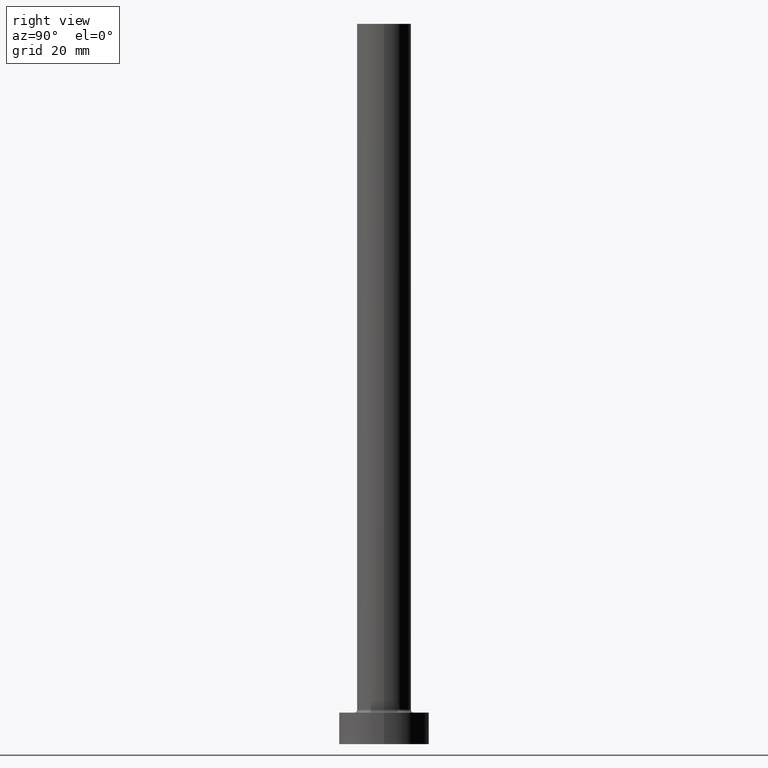
[diagram: clean part render]
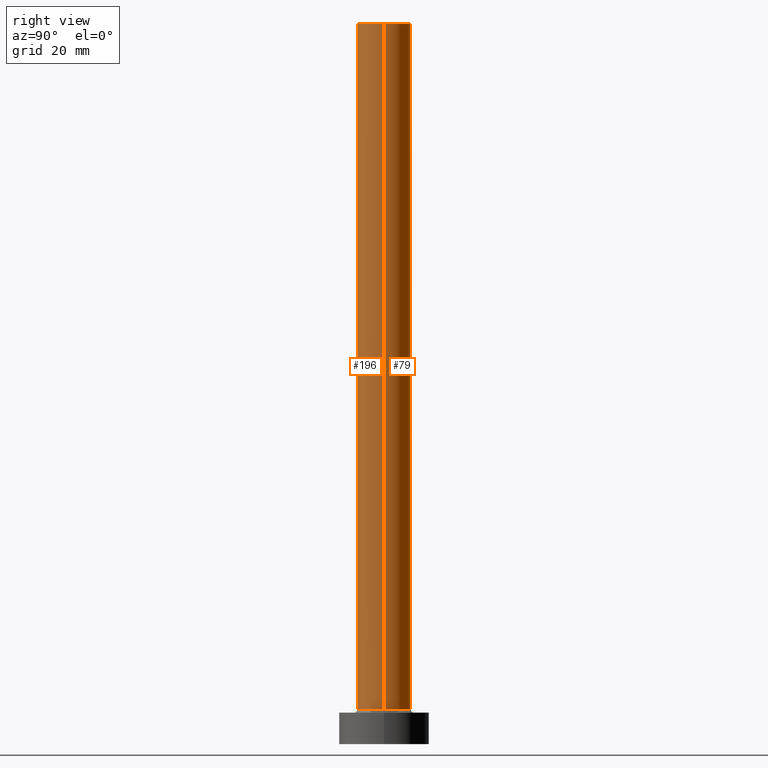
[diagram: same view with one multi-face feature highlighted, each face labeled with its STEP entity id]
A machine part, right view. The highlighted faces form ONE feature: a constant-radius fillet chain: 2 tangent blend faces with common blend radius 6 mm. The faces share edges in the B-rep.
Their STEP definitions:
[1] entity #79 (Cylinder):
#4 = LINE ( 'NONE', #185, #147 ) ;
#6 = AXIS2_PLACEMENT_3D ( 'NONE', #52, #191, #339 ) ;
#14 = EDGE_CURVE ( 'NONE', #306, #256, #152, .T. ) ;
#21 = CIRCLE ( 'NONE', #6, 6.000000000000000888 ) ;
#40 = ORIENTED_EDGE ( 'NONE', *, *, #305, .F. ) ;
#52 = CARTESIAN_POINT ( 'NONE',  ( 0.000000000000000000, 0.000000000000000000, 7.700000000000012612 ) ) ;
#54 = CARTESIAN_POINT ( 'NONE',  ( 0.000000000000000000, 0.000000000000000000, 160.0000000000000000 ) ) ;
#62 = VERTEX_POINT ( 'NONE', #445 ) ;
#79 = ADVANCED_FACE ( 'NONE', ( #274 ), #270, .T. ) ;
#94 = DIRECTION ( 'NONE',  ( -1.000000000000000000, 0.000000000000000000, 0.000000000000000000 ) ) ;
#104 = ORIENTED_EDGE ( 'NONE', *, *, #14, .T. ) ;
#139 = ORIENTED_EDGE ( 'NONE', *, *, #446, .T. ) ;
#146 = DIRECTION ( 'NONE',  ( -0.000000000000000000, -0.000000000000000000, -1.000000000000000000 ) ) ;
#147 = VECTOR ( 'NONE', #146, 1000.000000000000000 ) ;
#148 = CARTESIAN_POINT ( 'NONE',  ( -6.000000000000000888, 0.000000000000000000, 7.700000000000012612 ) ) ;
#152 = LINE ( 'NONE', #374, #268 ) ;
#153 = CARTESIAN_POINT ( 'NONE',  ( 6.000000000000000888, 7.347880794884120722E-16, 7.700000000000012612 ) ) ;
#163 = EDGE_LOOP ( 'NONE', ( #213, #104, #139, #40 ) ) ;
#185 = CARTESIAN_POINT ( 'NONE',  ( -6.000000000000000888, 0.000000000000000000, 160.0000000000000000 ) ) ;
#191 = DIRECTION ( 'NONE',  ( 0.000000000000000000, 0.000000000000000000, 1.000000000000000000 ) ) ;
#211 = EDGE_CURVE ( 'NONE', #306, #62, #381, .T. ) ;
#213 = ORIENTED_EDGE ( 'NONE', *, *, #211, .F. ) ;
#250 = AXIS2_PLACEMENT_3D ( 'NONE', #359, #292, #321 ) ;
#256 = VERTEX_POINT ( 'NONE', #153 ) ;
#268 = VECTOR ( 'NONE', #300, 1000.000000000000000 ) ;
#270 = CYLINDRICAL_SURFACE ( 'NONE', #352, 6.000000000000000888 ) ;
#274 = FACE_OUTER_BOUND ( 'NONE', #163, .T. ) ;
#286 = VERTEX_POINT ( 'NONE', #148 ) ;
#292 = DIRECTION ( 'NONE',  ( 0.000000000000000000, 0.000000000000000000, 1.000000000000000000 ) ) ;
#300 = DIRECTION ( 'NONE',  ( -0.000000000000000000, -0.000000000000000000, -1.000000000000000000 ) ) ;
#305 = EDGE_CURVE ( 'NONE', #62, #286, #4, .T. ) ;
#306 = VERTEX_POINT ( 'NONE', #432 ) ;
#321 = DIRECTION ( 'NONE',  ( 1.000000000000000000, 0.000000000000000000, 0.000000000000000000 ) ) ;
#339 = DIRECTION ( 'NONE',  ( 1.000000000000000000, 0.000000000000000000, 0.000000000000000000 ) ) ;
#352 = AXIS2_PLACEMENT_3D ( 'NONE', #54, #411, #94 ) ;
#359 = CARTESIAN_POINT ( 'NONE',  ( 0.000000000000000000, 0.000000000000000000, 160.0000000000000000 ) ) ;
#374 = CARTESIAN_POINT ( 'NONE',  ( 6.000000000000000888, 7.347880794884120722E-16, 160.0000000000000000 ) ) ;
#381 = CIRCLE ( 'NONE', #250, 6.000000000000000888 ) ;
#411 = DIRECTION ( 'NONE',  ( -0.000000000000000000, -0.000000000000000000, -1.000000000000000000 ) ) ;
#432 = CARTESIAN_POINT ( 'NONE',  ( 6.000000000000000888, 7.347880794884120722E-16, 160.0000000000000000 ) ) ;
#445 = CARTESIAN_POINT ( 'NONE',  ( -6.000000000000000888, 0.000000000000000000, 160.0000000000000000 ) ) ;
#446 = EDGE_CURVE ( 'NONE', #256, #286, #21, .T. ) ;
[2] entity #196 (Cylinder):
#4 = LINE ( 'NONE', #185, #147 ) ;
#14 = EDGE_CURVE ( 'NONE', #306, #256, #152, .T. ) ;
#32 = CARTESIAN_POINT ( 'NONE',  ( 0.000000000000000000, 0.000000000000000000, 160.0000000000000000 ) ) ;
#61 = DIRECTION ( 'NONE',  ( -1.000000000000000000, 0.000000000000000000, 0.000000000000000000 ) ) ;
#62 = VERTEX_POINT ( 'NONE', #445 ) ;
#85 = DIRECTION ( 'NONE',  ( 1.000000000000000000, 0.000000000000000000, 0.000000000000000000 ) ) ;
#101 = EDGE_CURVE ( 'NONE', #62, #306, #157, .T. ) ;
#113 = CARTESIAN_POINT ( 'NONE',  ( 0.000000000000000000, 0.000000000000000000, 7.700000000000012612 ) ) ;
#135 = ORIENTED_EDGE ( 'NONE', *, *, #239, .T. ) ;
#146 = DIRECTION ( 'NONE',  ( -0.000000000000000000, -0.000000000000000000, -1.000000000000000000 ) ) ;
#147 = VECTOR ( 'NONE', #146, 1000.000000000000000 ) ;
#148 = CARTESIAN_POINT ( 'NONE',  ( -6.000000000000000888, 0.000000000000000000, 7.700000000000012612 ) ) ;
#152 = LINE ( 'NONE', #374, #268 ) ;
#153 = CARTESIAN_POINT ( 'NONE',  ( 6.000000000000000888, 7.347880794884120722E-16, 7.700000000000012612 ) ) ;
#157 = CIRCLE ( 'NONE', #414, 6.000000000000000888 ) ;
#160 = AXIS2_PLACEMENT_3D ( 'NONE', #113, #288, #85 ) ;
#170 = CYLINDRICAL_SURFACE ( 'NONE', #192, 6.000000000000000888 ) ;
#171 = EDGE_LOOP ( 'NONE', ( #433, #190, #415, #135 ) ) ;
#185 = CARTESIAN_POINT ( 'NONE',  ( -6.000000000000000888, 0.000000000000000000, 160.0000000000000000 ) ) ;
#190 = ORIENTED_EDGE ( 'NONE', *, *, #101, .F. ) ;
#192 = AXIS2_PLACEMENT_3D ( 'NONE', #32, #317, #61 ) ;
#196 = ADVANCED_FACE ( 'NONE', ( #308 ), #170, .T. ) ;
#227 = CIRCLE ( 'NONE', #160, 6.000000000000000888 ) ;
#239 = EDGE_CURVE ( 'NONE', #286, #256, #227, .T. ) ;
#243 = DIRECTION ( 'NONE',  ( 1.000000000000000000, 0.000000000000000000, 0.000000000000000000 ) ) ;
#256 = VERTEX_POINT ( 'NONE', #153 ) ;
#268 = VECTOR ( 'NONE', #300, 1000.000000000000000 ) ;
#272 = DIRECTION ( 'NONE',  ( 0.000000000000000000, 0.000000000000000000, 1.000000000000000000 ) ) ;
#286 = VERTEX_POINT ( 'NONE', #148 ) ;
#288 = DIRECTION ( 'NONE',  ( 0.000000000000000000, 0.000000000000000000, 1.000000000000000000 ) ) ;
#300 = DIRECTION ( 'NONE',  ( -0.000000000000000000, -0.000000000000000000, -1.000000000000000000 ) ) ;
#305 = EDGE_CURVE ( 'NONE', #62, #286, #4, .T. ) ;
#306 = VERTEX_POINT ( 'NONE', #432 ) ;
#308 = FACE_OUTER_BOUND ( 'NONE', #171, .T. ) ;
#317 = DIRECTION ( 'NONE',  ( -0.000000000000000000, -0.000000000000000000, -1.000000000000000000 ) ) ;
#335 = CARTESIAN_POINT ( 'NONE',  ( 0.000000000000000000, 0.000000000000000000, 160.0000000000000000 ) ) ;
#374 = CARTESIAN_POINT ( 'NONE',  ( 6.000000000000000888, 7.347880794884120722E-16, 160.0000000000000000 ) ) ;
#414 = AXIS2_PLACEMENT_3D ( 'NONE', #335, #272, #243 ) ;
#415 = ORIENTED_EDGE ( 'NONE', *, *, #305, .T. ) ;
#432 = CARTESIAN_POINT ( 'NONE',  ( 6.000000000000000888, 7.347880794884120722E-16, 160.0000000000000000 ) ) ;
#433 = ORIENTED_EDGE ( 'NONE', *, *, #14, .F. ) ;
#445 = CARTESIAN_POINT ( 'NONE',  ( -6.000000000000000888, 0.000000000000000000, 160.0000000000000000 ) ) ;